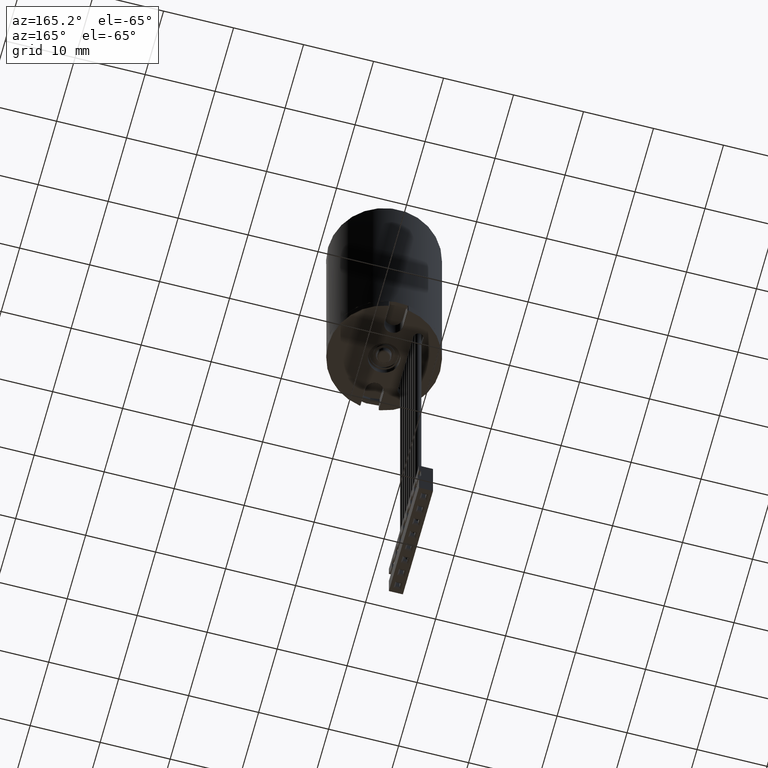
[diagram: clean part render]
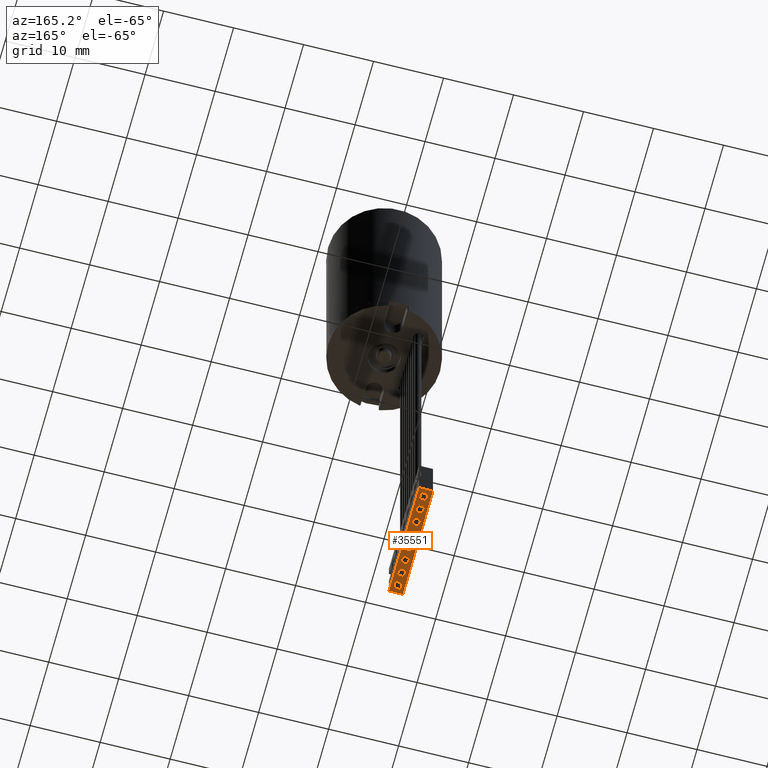
[diagram: same view with one face highlighted and labeled with its STEP entity id]
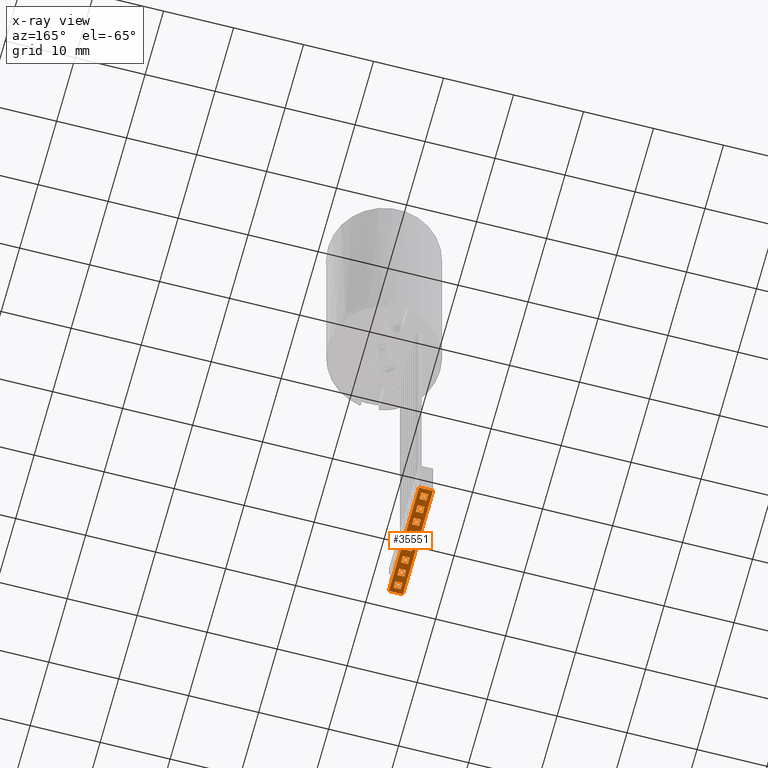
[diagram: x-ray of the same camera — body ghosted, the highlighted face saturated]
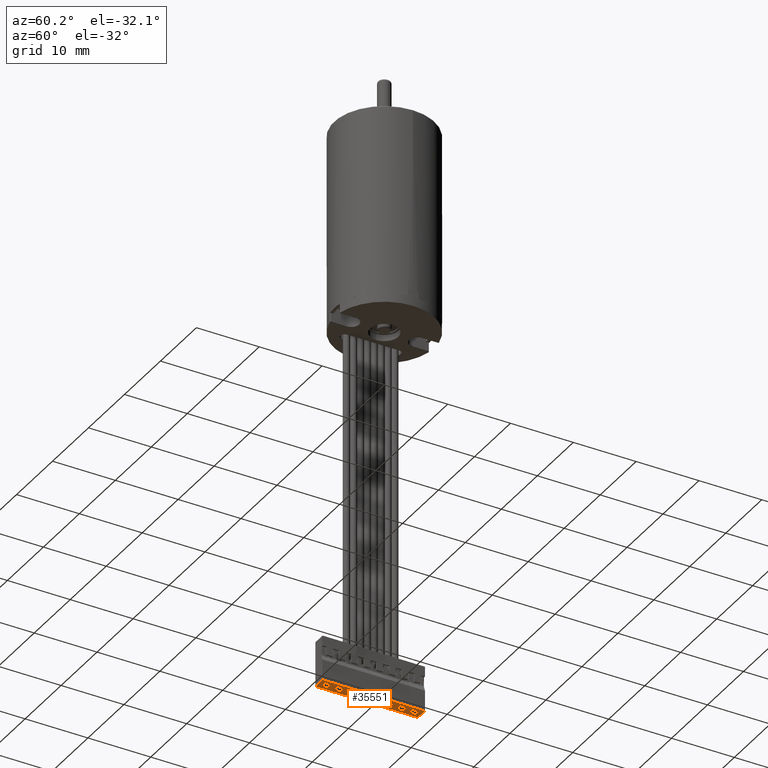
[diagram: same view with one face highlighted and labeled with its STEP entity id]
A machine part, auxiliary view. The second image highlights one B-rep face of the part: STEP entity #35551.
The next image is the same camera in x-ray: the body ghosted, the highlighted face saturated — about 0% of this face is hidden behind the body in this view.
A second angle (auxiliary view) of the same face is appended — the face is thin or edge-on in the first view.
In plain terms, the highlighted planar face has unit normal (0, 0, -1).
Its self-contained STEP definition (entity closure, byte-faithful):
#32291=DIRECTION('',(1.E0,0.E0,0.E0));
#32292=VECTOR('',#32291,2.E0);
#32293=CARTESIAN_POINT('',(0.E0,7.2E0,1.63E1));
#32294=LINE('',#32293,#32292);
#32411=DIRECTION('',(1.E0,0.E0,0.E0));
#32412=VECTOR('',#32411,2.E0);
#32413=CARTESIAN_POINT('',(0.E0,7.2E0,0.E0));
#32414=LINE('',#32413,#32412);
#32415=DIRECTION('',(0.E0,0.E0,-1.E0));
#32416=VECTOR('',#32415,1.63E1);
#32417=CARTESIAN_POINT('',(0.E0,7.2E0,1.63E1));
#32418=LINE('',#32417,#32416);
#32419=DIRECTION('',(1.E0,0.E0,0.E0));
#32420=VECTOR('',#32419,1.E0);
#32421=CARTESIAN_POINT('',(5.E-1,7.2E0,1.65E0));
#32422=LINE('',#32421,#32420);
#32423=DIRECTION('',(0.E0,0.E0,-1.E0));
#32424=VECTOR('',#32423,1.E0);
#32425=CARTESIAN_POINT('',(1.5E0,7.2E0,1.65E0));
#32426=LINE('',#32425,#32424);
#32427=DIRECTION('',(-1.E0,0.E0,0.E0));
#32428=VECTOR('',#32427,1.E0);
#32429=CARTESIAN_POINT('',(1.5E0,7.2E0,6.5E-1));
#32430=LINE('',#32429,#32428);
#32431=DIRECTION('',(0.E0,0.E0,1.E0));
#32432=VECTOR('',#32431,1.E0);
#32433=CARTESIAN_POINT('',(5.E-1,7.2E0,6.5E-1));
#32434=LINE('',#32433,#32432);
#32435=DIRECTION('',(1.E0,0.E0,0.E0));
#32436=VECTOR('',#32435,1.E0);
#32437=CARTESIAN_POINT('',(5.E-1,7.2E0,3.65E0));
#32438=LINE('',#32437,#32436);
#32439=DIRECTION('',(0.E0,0.E0,-1.E0));
#32440=VECTOR('',#32439,1.E0);
#32441=CARTESIAN_POINT('',(1.5E0,7.2E0,3.65E0));
#32442=LINE('',#32441,#32440);
#32443=DIRECTION('',(-1.E0,0.E0,0.E0));
#32444=VECTOR('',#32443,1.E0);
#32445=CARTESIAN_POINT('',(1.5E0,7.2E0,2.65E0));
#32446=LINE('',#32445,#32444);
#32447=DIRECTION('',(0.E0,0.E0,1.E0));
#32448=VECTOR('',#32447,1.E0);
#32449=CARTESIAN_POINT('',(5.E-1,7.2E0,2.65E0));
#32450=LINE('',#32449,#32448);
#32451=DIRECTION('',(1.E0,0.E0,0.E0));
#32452=VECTOR('',#32451,1.E0);
#32453=CARTESIAN_POINT('',(5.E-1,7.2E0,5.65E0));
#32454=LINE('',#32453,#32452);
#32455=DIRECTION('',(0.E0,0.E0,-1.E0));
#32456=VECTOR('',#32455,1.E0);
#32457=CARTESIAN_POINT('',(1.5E0,7.2E0,5.65E0));
#32458=LINE('',#32457,#32456);
#32459=DIRECTION('',(-1.E0,0.E0,0.E0));
#32460=VECTOR('',#32459,1.E0);
#32461=CARTESIAN_POINT('',(1.5E0,7.2E0,4.65E0));
#32462=LINE('',#32461,#32460);
#32463=DIRECTION('',(0.E0,0.E0,1.E0));
#32464=VECTOR('',#32463,1.E0);
#32465=CARTESIAN_POINT('',(5.E-1,7.2E0,4.65E0));
#32466=LINE('',#32465,#32464);
#32467=DIRECTION('',(1.E0,0.E0,0.E0));
#32468=VECTOR('',#32467,1.E0);
#32469=CARTESIAN_POINT('',(5.E-1,7.2E0,7.65E0));
#32470=LINE('',#32469,#32468);
#32471=DIRECTION('',(0.E0,0.E0,-1.E0));
#32472=VECTOR('',#32471,1.E0);
#32473=CARTESIAN_POINT('',(1.5E0,7.2E0,7.65E0));
#32474=LINE('',#32473,#32472);
#32475=DIRECTION('',(-1.E0,0.E0,0.E0));
#32476=VECTOR('',#32475,1.E0);
#32477=CARTESIAN_POINT('',(1.5E0,7.2E0,6.65E0));
#32478=LINE('',#32477,#32476);
#32479=DIRECTION('',(0.E0,0.E0,1.E0));
#32480=VECTOR('',#32479,1.E0);
#32481=CARTESIAN_POINT('',(5.E-1,7.2E0,6.65E0));
#32482=LINE('',#32481,#32480);
#32483=DIRECTION('',(1.E0,0.E0,0.E0));
#32484=VECTOR('',#32483,1.E0);
#32485=CARTESIAN_POINT('',(5.E-1,7.2E0,9.65E0));
#32486=LINE('',#32485,#32484);
#32487=DIRECTION('',(0.E0,0.E0,-1.E0));
#32488=VECTOR('',#32487,1.E0);
#32489=CARTESIAN_POINT('',(1.5E0,7.2E0,9.65E0));
#32490=LINE('',#32489,#32488);
#32491=DIRECTION('',(-1.E0,0.E0,0.E0));
#32492=VECTOR('',#32491,1.E0);
#32493=CARTESIAN_POINT('',(1.5E0,7.2E0,8.65E0));
#32494=LINE('',#32493,#32492);
#32495=DIRECTION('',(0.E0,0.E0,1.E0));
#32496=VECTOR('',#32495,1.E0);
#32497=CARTESIAN_POINT('',(5.E-1,7.2E0,8.65E0));
#32498=LINE('',#32497,#32496);
#32499=DIRECTION('',(1.E0,0.E0,0.E0));
#32500=VECTOR('',#32499,1.E0);
#32501=CARTESIAN_POINT('',(5.E-1,7.2E0,1.165E1));
#32502=LINE('',#32501,#32500);
#32503=DIRECTION('',(0.E0,0.E0,-1.E0));
#32504=VECTOR('',#32503,1.E0);
#32505=CARTESIAN_POINT('',(1.5E0,7.2E0,1.165E1));
#32506=LINE('',#32505,#32504);
#32507=DIRECTION('',(-1.E0,0.E0,0.E0));
#32508=VECTOR('',#32507,1.E0);
#32509=CARTESIAN_POINT('',(1.5E0,7.2E0,1.065E1));
#32510=LINE('',#32509,#32508);
#32511=DIRECTION('',(0.E0,0.E0,1.E0));
#32512=VECTOR('',#32511,1.E0);
#32513=CARTESIAN_POINT('',(5.E-1,7.2E0,1.065E1));
#32514=LINE('',#32513,#32512);
#32515=DIRECTION('',(1.E0,0.E0,0.E0));
#32516=VECTOR('',#32515,1.E0);
#32517=CARTESIAN_POINT('',(5.E-1,7.2E0,1.365E1));
#32518=LINE('',#32517,#32516);
#32519=DIRECTION('',(0.E0,0.E0,-1.E0));
#32520=VECTOR('',#32519,1.E0);
#32521=CARTESIAN_POINT('',(1.5E0,7.2E0,1.365E1));
#32522=LINE('',#32521,#32520);
#32523=DIRECTION('',(-1.E0,0.E0,0.E0));
#32524=VECTOR('',#32523,1.E0);
#32525=CARTESIAN_POINT('',(1.5E0,7.2E0,1.265E1));
#32526=LINE('',#32525,#32524);
#32527=DIRECTION('',(0.E0,0.E0,1.E0));
#32528=VECTOR('',#32527,1.E0);
#32529=CARTESIAN_POINT('',(5.E-1,7.2E0,1.265E1));
#32530=LINE('',#32529,#32528);
#32531=DIRECTION('',(1.E0,0.E0,0.E0));
#32532=VECTOR('',#32531,1.E0);
#32533=CARTESIAN_POINT('',(5.E-1,7.2E0,1.565E1));
#32534=LINE('',#32533,#32532);
#32535=DIRECTION('',(0.E0,0.E0,-1.E0));
#32536=VECTOR('',#32535,1.E0);
#32537=CARTESIAN_POINT('',(1.5E0,7.2E0,1.565E1));
#32538=LINE('',#32537,#32536);
#32539=DIRECTION('',(-1.E0,0.E0,0.E0));
#32540=VECTOR('',#32539,1.E0);
#32541=CARTESIAN_POINT('',(1.5E0,7.2E0,1.465E1));
#32542=LINE('',#32541,#32540);
#32543=DIRECTION('',(0.E0,0.E0,1.E0));
#32544=VECTOR('',#32543,1.E0);
#32545=CARTESIAN_POINT('',(5.E-1,7.2E0,1.465E1));
#32546=LINE('',#32545,#32544);
#32551=DIRECTION('',(0.E0,0.E0,-1.E0));
#32552=VECTOR('',#32551,1.63E1);
#32553=CARTESIAN_POINT('',(2.E0,7.2E0,1.63E1));
#32554=LINE('',#32553,#32552);
#33631=CARTESIAN_POINT('',(2.E0,7.2E0,0.E0));
#33632=VERTEX_POINT('',#33631);
#33633=CARTESIAN_POINT('',(0.E0,7.2E0,0.E0));
#33634=VERTEX_POINT('',#33633);
#33863=CARTESIAN_POINT('',(1.5E0,7.2E0,1.465E1));
#33864=VERTEX_POINT('',#33863);
#33865=CARTESIAN_POINT('',(1.5E0,7.2E0,1.565E1));
#33866=VERTEX_POINT('',#33865);
#33867=CARTESIAN_POINT('',(5.E-1,7.2E0,1.465E1));
#33868=VERTEX_POINT('',#33867);
#33869=CARTESIAN_POINT('',(5.E-1,7.2E0,1.565E1));
#33870=VERTEX_POINT('',#33869);
#33871=CARTESIAN_POINT('',(2.E0,7.2E0,1.63E1));
#33872=VERTEX_POINT('',#33871);
#33873=CARTESIAN_POINT('',(0.E0,7.2E0,1.63E1));
#33874=VERTEX_POINT('',#33873);
#33875=CARTESIAN_POINT('',(5.E-1,7.2E0,1.65E0));
#33876=CARTESIAN_POINT('',(1.5E0,7.2E0,1.65E0));
#33877=VERTEX_POINT('',#33875);
#33878=VERTEX_POINT('',#33876);
#33879=CARTESIAN_POINT('',(1.5E0,7.2E0,6.5E-1));
#33880=VERTEX_POINT('',#33879);
#33881=CARTESIAN_POINT('',(5.E-1,7.2E0,6.5E-1));
#33882=VERTEX_POINT('',#33881);
#33883=CARTESIAN_POINT('',(5.E-1,7.2E0,3.65E0));
#33884=CARTESIAN_POINT('',(1.5E0,7.2E0,3.65E0));
#33885=VERTEX_POINT('',#33883);
#33886=VERTEX_POINT('',#33884);
#33887=CARTESIAN_POINT('',(1.5E0,7.2E0,2.65E0));
#33888=VERTEX_POINT('',#33887);
#33889=CARTESIAN_POINT('',(5.E-1,7.2E0,2.65E0));
#33890=VERTEX_POINT('',#33889);
#33891=CARTESIAN_POINT('',(5.E-1,7.2E0,5.65E0));
#33892=CARTESIAN_POINT('',(1.5E0,7.2E0,5.65E0));
#33893=VERTEX_POINT('',#33891);
#33894=VERTEX_POINT('',#33892);
#33895=CARTESIAN_POINT('',(1.5E0,7.2E0,4.65E0));
#33896=VERTEX_POINT('',#33895);
#33897=CARTESIAN_POINT('',(5.E-1,7.2E0,4.65E0));
#33898=VERTEX_POINT('',#33897);
#33899=CARTESIAN_POINT('',(5.E-1,7.2E0,7.65E0));
#33900=CARTESIAN_POINT('',(1.5E0,7.2E0,7.65E0));
#33901=VERTEX_POINT('',#33899);
#33902=VERTEX_POINT('',#33900);
#33903=CARTESIAN_POINT('',(1.5E0,7.2E0,6.65E0));
#33904=VERTEX_POINT('',#33903);
#33905=CARTESIAN_POINT('',(5.E-1,7.2E0,6.65E0));
#33906=VERTEX_POINT('',#33905);
#33907=CARTESIAN_POINT('',(5.E-1,7.2E0,9.65E0));
#33908=CARTESIAN_POINT('',(1.5E0,7.2E0,9.65E0));
#33909=VERTEX_POINT('',#33907);
#33910=VERTEX_POINT('',#33908);
#33911=CARTESIAN_POINT('',(1.5E0,7.2E0,8.65E0));
#33912=VERTEX_POINT('',#33911);
#33913=CARTESIAN_POINT('',(5.E-1,7.2E0,8.65E0));
#33914=VERTEX_POINT('',#33913);
#33915=CARTESIAN_POINT('',(5.E-1,7.2E0,1.165E1));
#33916=CARTESIAN_POINT('',(1.5E0,7.2E0,1.165E1));
#33917=VERTEX_POINT('',#33915);
#33918=VERTEX_POINT('',#33916);
#33919=CARTESIAN_POINT('',(1.5E0,7.2E0,1.065E1));
#33920=VERTEX_POINT('',#33919);
#33921=CARTESIAN_POINT('',(5.E-1,7.2E0,1.065E1));
#33922=VERTEX_POINT('',#33921);
#33923=CARTESIAN_POINT('',(5.E-1,7.2E0,1.365E1));
#33924=CARTESIAN_POINT('',(1.5E0,7.2E0,1.365E1));
#33925=VERTEX_POINT('',#33923);
#33926=VERTEX_POINT('',#33924);
#33927=CARTESIAN_POINT('',(1.5E0,7.2E0,1.265E1));
#33928=VERTEX_POINT('',#33927);
#33929=CARTESIAN_POINT('',(5.E-1,7.2E0,1.265E1));
#33930=VERTEX_POINT('',#33929);
#35462=CARTESIAN_POINT('',(2.E0,7.2E0,0.E0));
#35463=DIRECTION('',(0.E0,1.E0,0.E0));
#35464=DIRECTION('',(-1.E0,0.E0,0.E0));
#35465=AXIS2_PLACEMENT_3D('',#35462,#35463,#35464);
#35466=PLANE('',#35465);
#35467=ORIENTED_EDGE('',*,*,#34272,.T.);
#35469=ORIENTED_EDGE('',*,*,#35468,.F.);
#35470=ORIENTED_EDGE('',*,*,#35210,.F.);
#35472=ORIENTED_EDGE('',*,*,#35471,.T.);
#35473=EDGE_LOOP('',(#35467,#35469,#35470,#35472));
#35474=FACE_OUTER_BOUND('',#35473,.F.);
#35476=ORIENTED_EDGE('',*,*,#35475,.T.);
#35478=ORIENTED_EDGE('',*,*,#35477,.T.);
#35480=ORIENTED_EDGE('',*,*,#35479,.T.);
#35482=ORIENTED_EDGE('',*,*,#35481,.T.);
#35483=EDGE_LOOP('',(#35476,#35478,#35480,#35482));
#35484=FACE_BOUND('',#35483,.F.);
#35486=ORIENTED_EDGE('',*,*,#35485,.T.);
#35488=ORIENTED_EDGE('',*,*,#35487,.T.);
#35490=ORIENTED_EDGE('',*,*,#35489,.T.);
#35492=ORIENTED_EDGE('',*,*,#35491,.T.);
#35493=EDGE_LOOP('',(#35486,#35488,#35490,#35492));
#35494=FACE_BOUND('',#35493,.F.);
#35496=ORIENTED_EDGE('',*,*,#35495,.T.);
#35498=ORIENTED_EDGE('',*,*,#35497,.T.);
#35500=ORIENTED_EDGE('',*,*,#35499,.T.);
#35502=ORIENTED_EDGE('',*,*,#35501,.T.);
#35503=EDGE_LOOP('',(#35496,#35498,#35500,#35502));
#35504=FACE_BOUND('',#35503,.F.);
#35506=ORIENTED_EDGE('',*,*,#35505,.T.);
#35508=ORIENTED_EDGE('',*,*,#35507,.T.);
#35510=ORIENTED_EDGE('',*,*,#35509,.T.);
#35512=ORIENTED_EDGE('',*,*,#35511,.T.);
#35513=EDGE_LOOP('',(#35506,#35508,#35510,#35512));
#35514=FACE_BOUND('',#35513,.F.);
#35516=ORIENTED_EDGE('',*,*,#35515,.T.);
#35518=ORIENTED_EDGE('',*,*,#35517,.T.);
#35520=ORIENTED_EDGE('',*,*,#35519,.T.);
#35522=ORIENTED_EDGE('',*,*,#35521,.T.);
#35523=EDGE_LOOP('',(#35516,#35518,#35520,#35522));
#35524=FACE_BOUND('',#35523,.F.);
#35526=ORIENTED_EDGE('',*,*,#35525,.T.);
#35528=ORIENTED_EDGE('',*,*,#35527,.T.);
#35530=ORIENTED_EDGE('',*,*,#35529,.T.);
#35532=ORIENTED_EDGE('',*,*,#35531,.T.);
#35533=EDGE_LOOP('',(#35526,#35528,#35530,#35532));
#35534=FACE_BOUND('',#35533,.F.);
#35535=ORIENTED_EDGE('',*,*,#35457,.T.);
#35536=ORIENTED_EDGE('',*,*,#35413,.T.);
#35537=ORIENTED_EDGE('',*,*,#35430,.T.);
#35538=ORIENTED_EDGE('',*,*,#35444,.T.);
#35539=EDGE_LOOP('',(#35535,#35536,#35537,#35538));
#35540=FACE_BOUND('',#35539,.F.);
#35542=ORIENTED_EDGE('',*,*,#35541,.T.);
#35544=ORIENTED_EDGE('',*,*,#35543,.T.);
#35546=ORIENTED_EDGE('',*,*,#35545,.T.);
#35548=ORIENTED_EDGE('',*,*,#35547,.T.);
#35549=EDGE_LOOP('',(#35542,#35544,#35546,#35548));
#35550=FACE_BOUND('',#35549,.F.);
#35551=ADVANCED_FACE('',(#35474,#35484,#35494,#35504,#35514,#35524,#35534,
#35540,#35550),#35466,.T.);
#34272=EDGE_CURVE('',#33634,#33632,#32414,.T.);
#35210=EDGE_CURVE('',#33874,#33872,#32294,.T.);
#35413=EDGE_CURVE('',#33926,#33928,#32522,.T.);
#35430=EDGE_CURVE('',#33928,#33930,#32526,.T.);
#35444=EDGE_CURVE('',#33930,#33925,#32530,.T.);
#35457=EDGE_CURVE('',#33925,#33926,#32518,.T.);
#35468=EDGE_CURVE('',#33872,#33632,#32554,.T.);
#35471=EDGE_CURVE('',#33874,#33634,#32418,.T.);
#35475=EDGE_CURVE('',#33877,#33878,#32422,.T.);
#35477=EDGE_CURVE('',#33878,#33880,#32426,.T.);
#35479=EDGE_CURVE('',#33880,#33882,#32430,.T.);
#35481=EDGE_CURVE('',#33882,#33877,#32434,.T.);
#35485=EDGE_CURVE('',#33885,#33886,#32438,.T.);
#35487=EDGE_CURVE('',#33886,#33888,#32442,.T.);
#35489=EDGE_CURVE('',#33888,#33890,#32446,.T.);
#35491=EDGE_CURVE('',#33890,#33885,#32450,.T.);
#35495=EDGE_CURVE('',#33893,#33894,#32454,.T.);
#35497=EDGE_CURVE('',#33894,#33896,#32458,.T.);
#35499=EDGE_CURVE('',#33896,#33898,#32462,.T.);
#35501=EDGE_CURVE('',#33898,#33893,#32466,.T.);
#35505=EDGE_CURVE('',#33901,#33902,#32470,.T.);
#35507=EDGE_CURVE('',#33902,#33904,#32474,.T.);
#35509=EDGE_CURVE('',#33904,#33906,#32478,.T.);
#35511=EDGE_CURVE('',#33906,#33901,#32482,.T.);
#35515=EDGE_CURVE('',#33909,#33910,#32486,.T.);
#35517=EDGE_CURVE('',#33910,#33912,#32490,.T.);
#35519=EDGE_CURVE('',#33912,#33914,#32494,.T.);
#35521=EDGE_CURVE('',#33914,#33909,#32498,.T.);
#35525=EDGE_CURVE('',#33917,#33918,#32502,.T.);
#35527=EDGE_CURVE('',#33918,#33920,#32506,.T.);
#35529=EDGE_CURVE('',#33920,#33922,#32510,.T.);
#35531=EDGE_CURVE('',#33922,#33917,#32514,.T.);
#35541=EDGE_CURVE('',#33870,#33866,#32534,.T.);
#35543=EDGE_CURVE('',#33866,#33864,#32538,.T.);
#35545=EDGE_CURVE('',#33864,#33868,#32542,.T.);
#35547=EDGE_CURVE('',#33868,#33870,#32546,.T.);